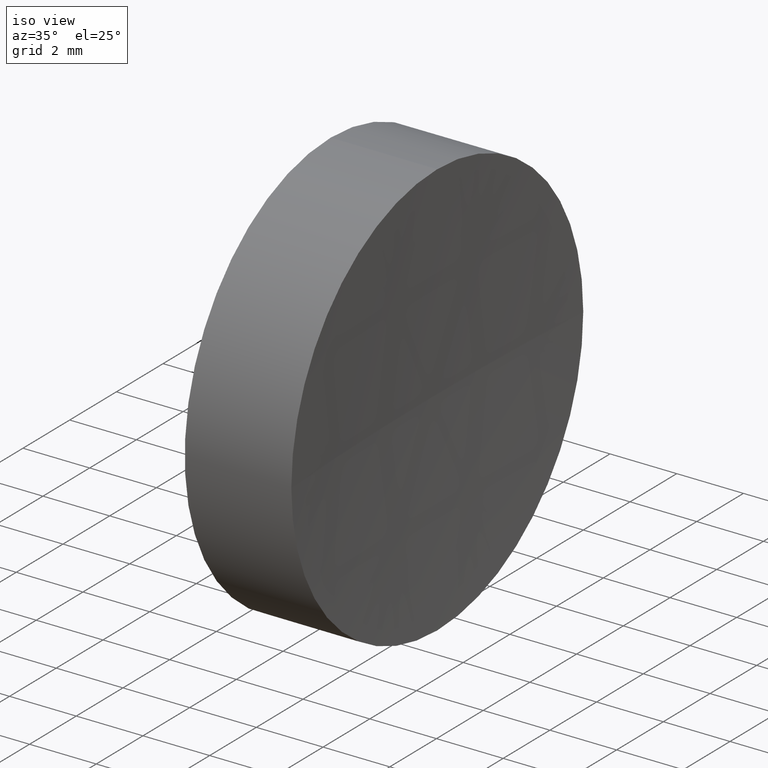
[diagram: clean part render]
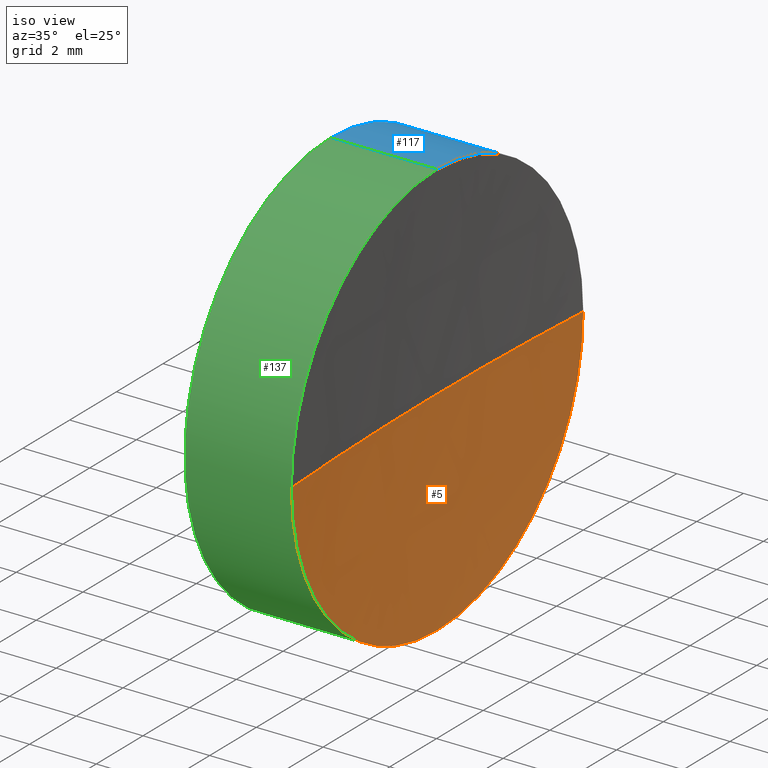
[diagram: same view with three faces highlighted in distinct colors, each labeled with its STEP entity id]
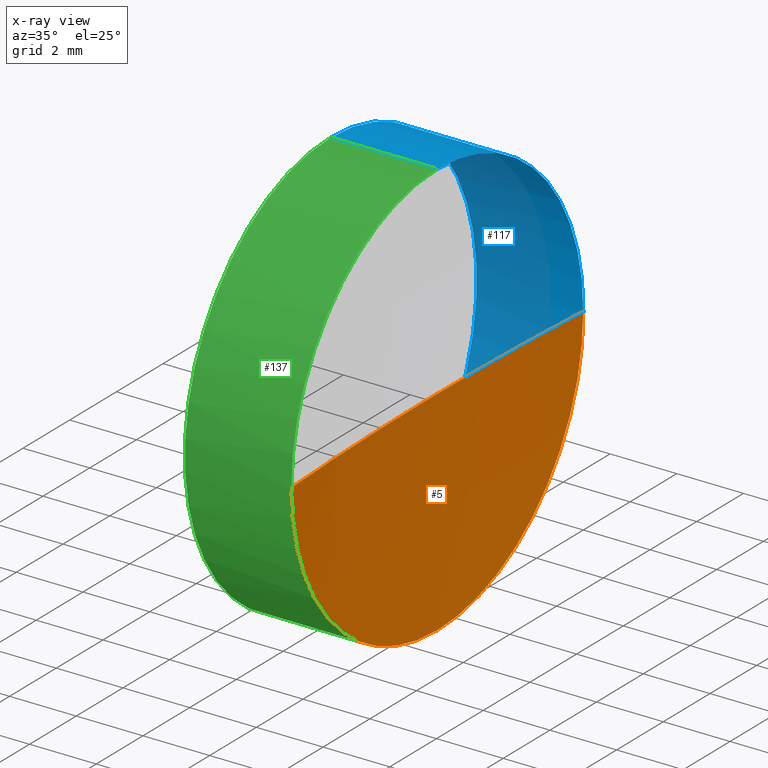
[diagram: x-ray of the same camera — body ghosted, the three highlighted faces saturated]
A machine part, iso view with three faces highlighted in distinct colors.
The next image is the same camera in x-ray (body ghosted, the three faces saturated) — at least one of them is partly hidden behind the body in this view.
Their STEP definitions:

[orange] entity #5 — the highlighted spherical surface has radius 100 mm.
#5 = ADVANCED_FACE ( 'NONE', ( #38 ), #113, .F. ) ;
#6 = CIRCLE ( 'NONE', #61, 99.99999999999997200 ) ;
#7 = DIRECTION ( 'NONE',  ( 0.0000000000000000000, -1.000000000000000000, 0.0000000000000000000 ) ) ;
#14 = EDGE_CURVE ( 'NONE', #148, #83, #6, .T. ) ;
#15 = VERTEX_POINT ( 'NONE', #49 ) ;
#18 = DIRECTION ( 'NONE',  ( -1.000000000000000000, -0.0000000000000000000, -0.0000000000000000000 ) ) ;
#22 = DIRECTION ( 'NONE',  ( 0.0000000000000000000, 0.0000000000000000000, 1.000000000000000000 ) ) ;
#38 = FACE_OUTER_BOUND ( 'NONE', #119, .T. ) ;
#46 = CARTESIAN_POINT ( 'NONE',  ( 160.5463279078974200, 34.68901056168621700, 0.0000000000000000000 ) ) ;
#49 = CARTESIAN_POINT ( 'NONE',  ( 60.74183151620172800, 34.68901056168621700, -6.250000000000004400 ) ) ;
#52 = AXIS2_PLACEMENT_3D ( 'NONE', #97, #173, #127 ) ;
#59 = AXIS2_PLACEMENT_3D ( 'NONE', #102, #131, #175 ) ;
#61 = AXIS2_PLACEMENT_3D ( 'NONE', #46, #154, #158 ) ;
#70 = AXIS2_PLACEMENT_3D ( 'NONE', #84, #18, #181 ) ;
#71 = ORIENTED_EDGE ( 'NONE', *, *, #73, .F. ) ;
#73 = EDGE_CURVE ( 'NONE', #15, #148, #114, .T. ) ;
#78 = ORIENTED_EDGE ( 'NONE', *, *, #14, .F. ) ;
#83 = VERTEX_POINT ( 'NONE', #143 ) ;
#84 = CARTESIAN_POINT ( 'NONE',  ( 60.74183151620172800, 34.68901056168621700, 0.0000000000000000000 ) ) ;
#90 = AXIS2_PLACEMENT_3D ( 'NONE', #125, #22, #7 ) ;
#92 = CIRCLE ( 'NONE', #70, 6.250000000000005300 ) ;
#95 = VERTEX_POINT ( 'NONE', #169 ) ;
#97 = CARTESIAN_POINT ( 'NONE',  ( 60.74183151620172800, 34.68901056168621700, 0.0000000000000000000 ) ) ;
#102 = CARTESIAN_POINT ( 'NONE',  ( 160.5463279078974200, 34.68901056168621700, 0.0000000000000000000 ) ) ;
#103 = ORIENTED_EDGE ( 'NONE', *, *, #139, .F. ) ;
#113 = SPHERICAL_SURFACE ( 'NONE', #90, 99.99999999999997200 ) ;
#114 = CIRCLE ( 'NONE', #52, 6.250000000000005300 ) ;
#116 = EDGE_CURVE ( 'NONE', #95, #83, #138, .T. ) ;
#119 = EDGE_LOOP ( 'NONE', ( #103, #120, #78, #71 ) ) ;
#120 = ORIENTED_EDGE ( 'NONE', *, *, #116, .T. ) ;
#125 = CARTESIAN_POINT ( 'NONE',  ( 160.5463279078974200, 34.68901056168621700, 0.0000000000000000000 ) ) ;
#127 = DIRECTION ( 'NONE',  ( 0.0000000000000000000, 0.0000000000000000000, 1.000000000000000000 ) ) ;
#131 = DIRECTION ( 'NONE',  ( 0.0000000000000000000, -1.224646799147353200E-016, 1.000000000000000000 ) ) ;
#138 = CIRCLE ( 'NONE', #59, 99.99999999999997200 ) ;
#139 = EDGE_CURVE ( 'NONE', #95, #15, #92, .T. ) ;
#143 = CARTESIAN_POINT ( 'NONE',  ( 60.54632790789743500, 34.68901056168621000, 0.0000000000000000000 ) ) ;
#148 = VERTEX_POINT ( 'NONE', #171 ) ;
#154 = DIRECTION ( 'NONE',  ( 0.0000000000000000000, 0.0000000000000000000, -1.000000000000000000 ) ) ;
#158 = DIRECTION ( 'NONE',  ( -1.000000000000000000, 0.0000000000000000000, 0.0000000000000000000 ) ) ;
#169 = CARTESIAN_POINT ( 'NONE',  ( 60.74183151620172100, 40.93901056168618900, 7.654042494670921100E-016 ) ) ;
#171 = CARTESIAN_POINT ( 'NONE',  ( 60.74183151620172100, 28.43901056168624600, 0.0000000000000000000 ) ) ;
#173 = DIRECTION ( 'NONE',  ( -1.000000000000000000, -0.0000000000000000000, -0.0000000000000000000 ) ) ;
#175 = DIRECTION ( 'NONE',  ( 0.0000000000000000000, -1.000000000000000000, -1.224646799147353200E-016 ) ) ;
#181 = DIRECTION ( 'NONE',  ( 0.0000000000000000000, 0.0000000000000000000, 1.000000000000000000 ) ) ;

[blue] entity #117 — the highlighted cylindrical surface (partial cylindrical patch) has radius 6.25 mm, axis along (-1, -0, -0).
#3 = ORIENTED_EDGE ( 'NONE', *, *, #139, .T. ) ;
#15 = VERTEX_POINT ( 'NONE', #49 ) ;
#18 = DIRECTION ( 'NONE',  ( -1.000000000000000000, -0.0000000000000000000, -0.0000000000000000000 ) ) ;
#25 = EDGE_CURVE ( 'NONE', #60, #34, #157, .T. ) ;
#26 = DIRECTION ( 'NONE',  ( -1.000000000000000000, -0.0000000000000000000, -0.0000000000000000000 ) ) ;
#30 = CIRCLE ( 'NONE', #176, 6.250000000000005300 ) ;
#34 = VERTEX_POINT ( 'NONE', #145 ) ;
#35 = CARTESIAN_POINT ( 'NONE',  ( 57.54632776745975800, 34.68901056168621700, 0.0000000000000000000 ) ) ;
#37 = CIRCLE ( 'NONE', #40, 6.249999999999998200 ) ;
#40 = AXIS2_PLACEMENT_3D ( 'NONE', #35, #68, #94 ) ;
#41 = ORIENTED_EDGE ( 'NONE', *, *, #25, .F. ) ;
#47 = EDGE_CURVE ( 'NONE', #34, #141, #37, .T. ) ;
#49 = CARTESIAN_POINT ( 'NONE',  ( 60.74183151620172800, 34.68901056168621700, -6.250000000000004400 ) ) ;
#50 = VECTOR ( 'NONE', #184, 1000.000000000000000 ) ;
#57 = CYLINDRICAL_SURFACE ( 'NONE', #67, 6.250000000000001800 ) ;
#60 = VERTEX_POINT ( 'NONE', #123 ) ;
#62 = VECTOR ( 'NONE', #152, 1000.000000000000000 ) ;
#67 = AXIS2_PLACEMENT_3D ( 'NONE', #112, #26, #146 ) ;
#68 = DIRECTION ( 'NONE',  ( -1.000000000000000000, -0.0000000000000000000, -0.0000000000000000000 ) ) ;
#70 = AXIS2_PLACEMENT_3D ( 'NONE', #84, #18, #181 ) ;
#75 = EDGE_CURVE ( 'NONE', #60, #95, #30, .T. ) ;
#84 = CARTESIAN_POINT ( 'NONE',  ( 60.74183151620172800, 34.68901056168621700, 0.0000000000000000000 ) ) ;
#85 = CARTESIAN_POINT ( 'NONE',  ( 57.54632776745975800, 34.68901056168621700, -6.249999999999998200 ) ) ;
#92 = CIRCLE ( 'NONE', #70, 6.250000000000005300 ) ;
#94 = DIRECTION ( 'NONE',  ( 0.0000000000000000000, 0.0000000000000000000, 1.000000000000000000 ) ) ;
#95 = VERTEX_POINT ( 'NONE', #169 ) ;
#100 = CARTESIAN_POINT ( 'NONE',  ( 54.49257150108255100, 34.68901056168621700, -6.250000000000001800 ) ) ;
#101 = CARTESIAN_POINT ( 'NONE',  ( 60.74183151620172800, 34.68901056168621700, 0.0000000000000000000 ) ) ;
#107 = CARTESIAN_POINT ( 'NONE',  ( 54.49257150108255100, 34.68901056168621700, 6.250000000000001800 ) ) ;
#109 = ORIENTED_EDGE ( 'NONE', *, *, #47, .F. ) ;
#111 = DIRECTION ( 'NONE',  ( 0.0000000000000000000, 0.0000000000000000000, 1.000000000000000000 ) ) ;
#112 = CARTESIAN_POINT ( 'NONE',  ( 54.49257150108255100, 34.68901056168621700, 0.0000000000000000000 ) ) ;
#117 = ADVANCED_FACE ( 'NONE', ( #165 ), #57, .T. ) ;
#118 = EDGE_CURVE ( 'NONE', #15, #141, #133, .T. ) ;
#123 = CARTESIAN_POINT ( 'NONE',  ( 60.74183151620172800, 34.68901056168621700, 6.250000000000004400 ) ) ;
#130 = DIRECTION ( 'NONE',  ( -1.000000000000000000, -0.0000000000000000000, -0.0000000000000000000 ) ) ;
#132 = EDGE_LOOP ( 'NONE', ( #3, #178, #109, #41, #161 ) ) ;
#133 = LINE ( 'NONE', #100, #50 ) ;
#139 = EDGE_CURVE ( 'NONE', #95, #15, #92, .T. ) ;
#141 = VERTEX_POINT ( 'NONE', #85 ) ;
#145 = CARTESIAN_POINT ( 'NONE',  ( 57.54632776745975800, 34.68901056168621700, 6.249999999999998200 ) ) ;
#146 = DIRECTION ( 'NONE',  ( 0.0000000000000000000, 0.0000000000000000000, 1.000000000000000000 ) ) ;
#152 = DIRECTION ( 'NONE',  ( -1.000000000000000000, -0.0000000000000000000, -0.0000000000000000000 ) ) ;
#157 = LINE ( 'NONE', #107, #62 ) ;
#161 = ORIENTED_EDGE ( 'NONE', *, *, #75, .T. ) ;
#165 = FACE_OUTER_BOUND ( 'NONE', #132, .T. ) ;
#169 = CARTESIAN_POINT ( 'NONE',  ( 60.74183151620172100, 40.93901056168618900, 7.654042494670921100E-016 ) ) ;
#176 = AXIS2_PLACEMENT_3D ( 'NONE', #101, #130, #111 ) ;
#178 = ORIENTED_EDGE ( 'NONE', *, *, #118, .T. ) ;
#181 = DIRECTION ( 'NONE',  ( 0.0000000000000000000, 0.0000000000000000000, 1.000000000000000000 ) ) ;
#184 = DIRECTION ( 'NONE',  ( -1.000000000000000000, -0.0000000000000000000, -0.0000000000000000000 ) ) ;

[green] entity #137 — the highlighted cylindrical surface (partial cylindrical patch) has radius 6.25 mm, axis along (-1, -0, -0).
#1 = ORIENTED_EDGE ( 'NONE', *, *, #73, .T. ) ;
#13 = DIRECTION ( 'NONE',  ( -1.000000000000000000, -0.0000000000000000000, -0.0000000000000000000 ) ) ;
#15 = VERTEX_POINT ( 'NONE', #49 ) ;
#17 = CYLINDRICAL_SURFACE ( 'NONE', #64, 6.250000000000001800 ) ;
#20 = DIRECTION ( 'NONE',  ( 0.0000000000000000000, 0.0000000000000000000, 1.000000000000000000 ) ) ;
#25 = EDGE_CURVE ( 'NONE', #60, #34, #157, .T. ) ;
#29 = CIRCLE ( 'NONE', #56, 6.250000000000005300 ) ;
#31 = AXIS2_PLACEMENT_3D ( 'NONE', #140, #183, #20 ) ;
#33 = CARTESIAN_POINT ( 'NONE',  ( 60.74183151620172800, 34.68901056168621700, 0.0000000000000000000 ) ) ;
#34 = VERTEX_POINT ( 'NONE', #145 ) ;
#44 = ORIENTED_EDGE ( 'NONE', *, *, #54, .F. ) ;
#49 = CARTESIAN_POINT ( 'NONE',  ( 60.74183151620172800, 34.68901056168621700, -6.250000000000004400 ) ) ;
#50 = VECTOR ( 'NONE', #184, 1000.000000000000000 ) ;
#52 = AXIS2_PLACEMENT_3D ( 'NONE', #97, #173, #127 ) ;
#53 = ORIENTED_EDGE ( 'NONE', *, *, #25, .T. ) ;
#54 = EDGE_CURVE ( 'NONE', #141, #34, #150, .T. ) ;
#56 = AXIS2_PLACEMENT_3D ( 'NONE', #33, #155, #144 ) ;
#60 = VERTEX_POINT ( 'NONE', #123 ) ;
#62 = VECTOR ( 'NONE', #152, 1000.000000000000000 ) ;
#64 = AXIS2_PLACEMENT_3D ( 'NONE', #65, #13, #172 ) ;
#65 = CARTESIAN_POINT ( 'NONE',  ( 54.49257150108255100, 34.68901056168621700, 0.0000000000000000000 ) ) ;
#73 = EDGE_CURVE ( 'NONE', #15, #148, #114, .T. ) ;
#85 = CARTESIAN_POINT ( 'NONE',  ( 57.54632776745975800, 34.68901056168621700, -6.249999999999998200 ) ) ;
#97 = CARTESIAN_POINT ( 'NONE',  ( 60.74183151620172800, 34.68901056168621700, 0.0000000000000000000 ) ) ;
#100 = CARTESIAN_POINT ( 'NONE',  ( 54.49257150108255100, 34.68901056168621700, -6.250000000000001800 ) ) ;
#106 = EDGE_LOOP ( 'NONE', ( #149, #1, #163, #53, #44 ) ) ;
#107 = CARTESIAN_POINT ( 'NONE',  ( 54.49257150108255100, 34.68901056168621700, 6.250000000000001800 ) ) ;
#114 = CIRCLE ( 'NONE', #52, 6.250000000000005300 ) ;
#118 = EDGE_CURVE ( 'NONE', #15, #141, #133, .T. ) ;
#123 = CARTESIAN_POINT ( 'NONE',  ( 60.74183151620172800, 34.68901056168621700, 6.250000000000004400 ) ) ;
#127 = DIRECTION ( 'NONE',  ( 0.0000000000000000000, 0.0000000000000000000, 1.000000000000000000 ) ) ;
#133 = LINE ( 'NONE', #100, #50 ) ;
#137 = ADVANCED_FACE ( 'NONE', ( #180 ), #17, .T. ) ;
#140 = CARTESIAN_POINT ( 'NONE',  ( 57.54632776745975800, 34.68901056168621700, 0.0000000000000000000 ) ) ;
#141 = VERTEX_POINT ( 'NONE', #85 ) ;
#144 = DIRECTION ( 'NONE',  ( 0.0000000000000000000, 0.0000000000000000000, 1.000000000000000000 ) ) ;
#145 = CARTESIAN_POINT ( 'NONE',  ( 57.54632776745975800, 34.68901056168621700, 6.249999999999998200 ) ) ;
#148 = VERTEX_POINT ( 'NONE', #171 ) ;
#149 = ORIENTED_EDGE ( 'NONE', *, *, #118, .F. ) ;
#150 = CIRCLE ( 'NONE', #31, 6.249999999999998200 ) ;
#152 = DIRECTION ( 'NONE',  ( -1.000000000000000000, -0.0000000000000000000, -0.0000000000000000000 ) ) ;
#155 = DIRECTION ( 'NONE',  ( -1.000000000000000000, -0.0000000000000000000, -0.0000000000000000000 ) ) ;
#157 = LINE ( 'NONE', #107, #62 ) ;
#159 = EDGE_CURVE ( 'NONE', #148, #60, #29, .T. ) ;
#163 = ORIENTED_EDGE ( 'NONE', *, *, #159, .T. ) ;
#171 = CARTESIAN_POINT ( 'NONE',  ( 60.74183151620172100, 28.43901056168624600, 0.0000000000000000000 ) ) ;
#172 = DIRECTION ( 'NONE',  ( 0.0000000000000000000, 0.0000000000000000000, 1.000000000000000000 ) ) ;
#173 = DIRECTION ( 'NONE',  ( -1.000000000000000000, -0.0000000000000000000, -0.0000000000000000000 ) ) ;
#180 = FACE_OUTER_BOUND ( 'NONE', #106, .T. ) ;
#183 = DIRECTION ( 'NONE',  ( -1.000000000000000000, -0.0000000000000000000, -0.0000000000000000000 ) ) ;
#184 = DIRECTION ( 'NONE',  ( -1.000000000000000000, -0.0000000000000000000, -0.0000000000000000000 ) ) ;